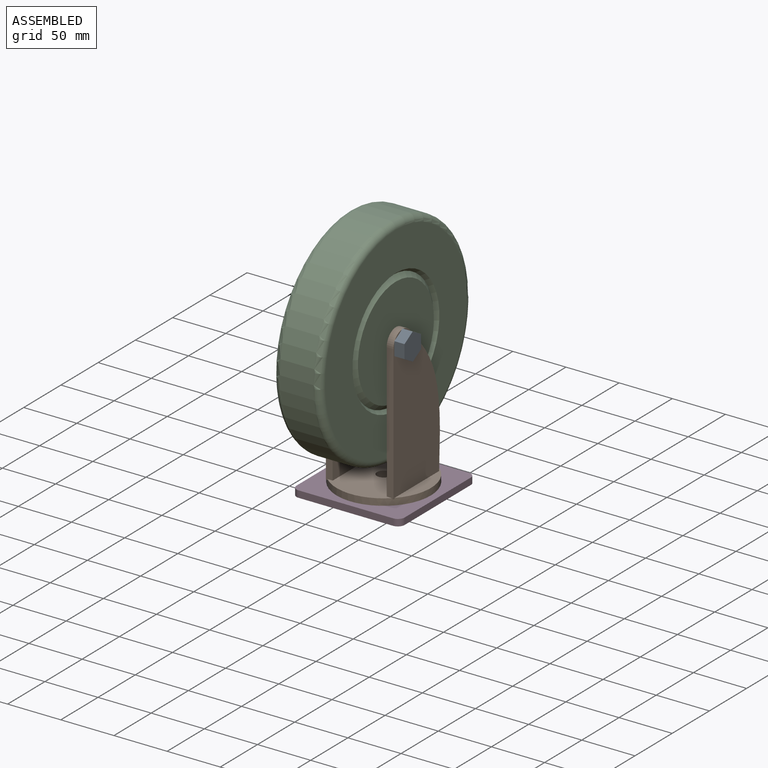
[diagram: assembled view]
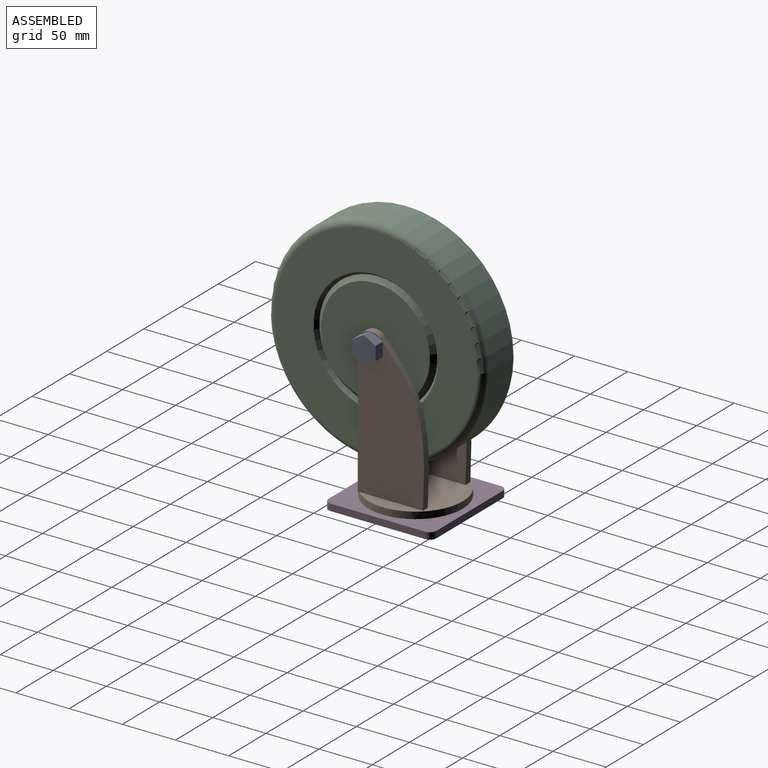
[diagram: assembled view, second angle]
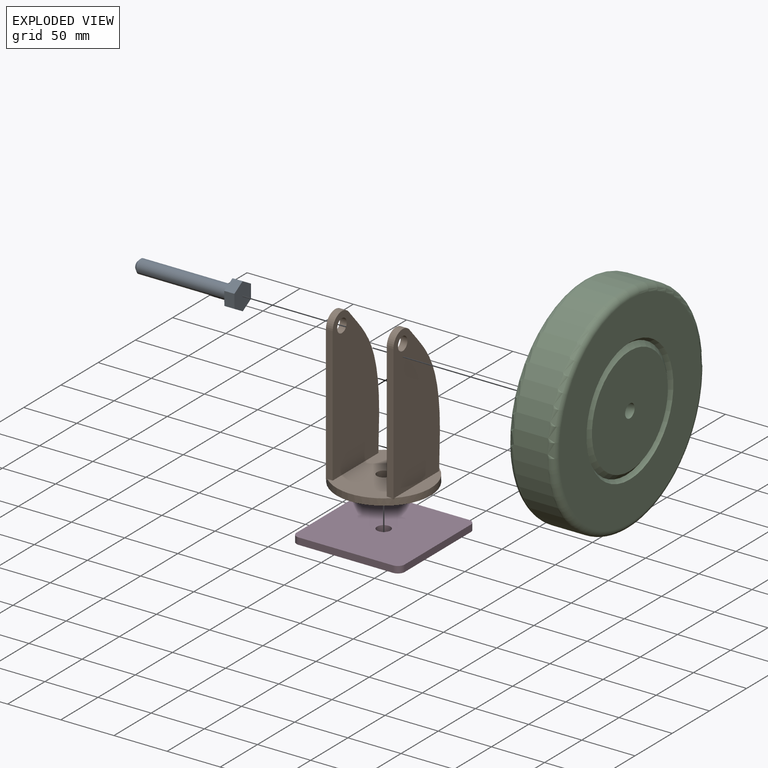
[diagram: exploded view]
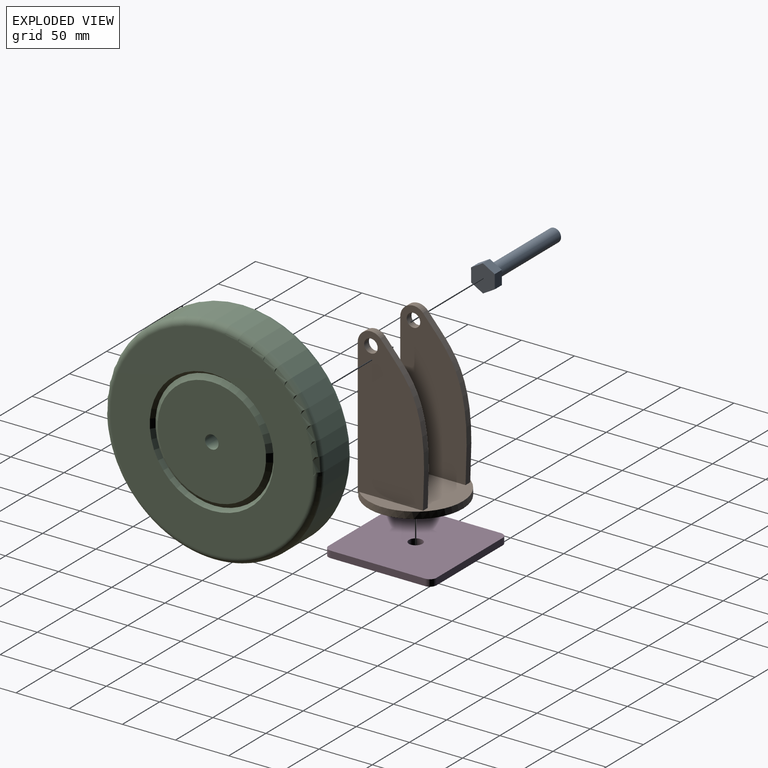
[diagram: exploded view, second angle]
ASSEMBLY  parts=4 mates=3
PART A: 11 faces, bbox 98.4x22.4x25.7 mm
  f0: cylinder r=6.35mm len=86.36mm, axis (-1,0,0), area 3445.6mm2, adj f9,f10
  f1: plane 7.62x7.62mm, normal (-1,0,0), area 45.6mm2, adj f10
  f2: plane 12.85x9.53mm, normal (0,1,0.01), area 122.4mm2, adj f3,f7,f8,f9
  f3: plane 11.19x9.53mm, normal (0,0.49,0.87), area 122.4mm2, adj f2,f4,f8,f9
  f4: plane 11.08x9.53mm, normal (0,-0.51,0.86), area 122.4mm2, adj f3,f5,f8,f9
  f5: plane 12.85x9.53mm, normal (0,-1,-0.01), area 122.4mm2, adj f4,f6,f8,f9
  f6: plane 11.19x9.53mm, normal (0,-0.49,-0.87), area 122.4mm2, adj f5,f7,f8,f9
  f7: plane 11.08x9.53mm, normal (0,0.51,-0.86), area 122.4mm2, adj f2,f6,f8,f9
  f8: plane 25.71x22.38mm, normal (1,0,0), area 429.3mm2, adj f2,f3,f4,f5,f6,f7
  f9: plane 25.71x22.38mm, normal (-1,0,0), area 302.6mm2, adj f0,f2,f3,f4,f5,f6,f7
  f10: cone r=6.35mm half-angle=45deg, axis (1,0,0), area 114.7mm2, adj f0,f1
PART B: 18 faces, bbox 88.7x88.7x145.8 mm
  f0: cylinder r=44.34mm len=88.68mm, axis (0,0,-1), area 1765.9mm2, adj f1,f3,f4,f5,f6,f11,f12,f16
  f1: plane 88.68x88.68mm, normal (0,0,1), area 5271.6mm2, adj f0,f2,f4,f5,f7,f10,f11,f12
  f2: cylinder r=6.35mm len=12.7mm, axis (0,0,-1), area 253.4mm2, adj f1,f3
  f3: plane 88.68x88.68mm, normal (0,0,-1), area 6049.5mm2, adj f0,f2
  f4: plane 127.85x6.35mm, normal (0,-1,0), area 807.6mm2, adj f0,f1,f5,f6,f9,f10
  f5: plane 140.26x62.94mm, normal (1,0,0), area 7186.4mm2, adj f0,f1,f4,f6,f7,f8,f9
  f6: plane 1.33x1.31mm, normal (0,0,-1), area 0.9mm2, adj f0,f4,f5
  f7: extruded ~134.36x39.99mm, area 925.5mm2, adj f1,f5,f9,f10
  f8: cylinder r=6.35mm len=12.7mm, axis (1,0,0), area 253.4mm2, adj f5,f10
  f9: cylinder r=12.41mm len=22.4mm, axis (1,0,0), area 197.5mm2, adj f4,f5,f7,f10
  f10: plane 139.95x62.94mm, normal (-1,0,0), area 7185.3mm2, adj f1,f4,f7,f8,f9
  f11: plane 127.85x6.35mm, normal (0,-1,0), area 807.6mm2, adj f0,f1,f12,f13,f16,f17
  f12: plane 140.26x62.94mm, normal (-1,0,0), area 7186.4mm2, adj f0,f1,f11,f13,f14,f15,f16
  f13: cylinder r=12.41mm len=22.4mm, axis (-1,0,0), area 197.5mm2, adj f11,f12,f14,f17
  f14: extruded ~134.36x39.99mm, area 925.5mm2, adj f1,f12,f13,f17
  f15: cylinder r=6.35mm len=12.7mm, axis (-1,0,0), area 253.4mm2, adj f12,f17
  f16: plane 1.33x1.31mm, normal (0,0,-1), area 0.9mm2, adj f0,f11,f12
  f17: plane 139.95x62.94mm, normal (1,0,0), area 7185.3mm2, adj f1,f11,f13,f14,f15
PART C: 12 faces, bbox 44.5x219.9x219.9 mm
  f0: cylinder r=101.6mm len=203.2mm, axis (-1,0,0), area 20268.3mm2, adj f1,f10
  f1: torus R=95.25mm, axis (-1,0,0), area 6222.9mm2, adj f0,f2
  f2: plane 190.5x190.5mm, normal (1,0,0), area 17805.4mm2, adj f1,f3
  f3: cone r=58.35mm half-angle=38.9deg, axis (1,0,0), area 1634.3mm2, adj f2,f4
  f4: cone r=55.48mm half-angle=51.1deg, axis (-1,0,0), area 1898.5mm2, adj f3,f5
  f5: plane 102.14x102.14mm, normal (1,0,0), area 8066.6mm2, adj f4,f11
  f6: plane 101.6x101.6mm, normal (-1,0,0), area 7980.6mm2, adj f7,f11
  f7: cone r=50.8mm half-angle=52deg, axis (1,0,0), area 1986mm2, adj f6,f8
  f8: cone r=55.48mm half-angle=38deg, axis (-1,0,0), area 1664.2mm2, adj f7,f9
  f9: plane 190.5x190.5mm, normal (-1,0,0), area 17805.4mm2, adj f8,f10
  f10: torus R=95.25mm, axis (-1,0,0), area 6222.9mm2, adj f0,f9
  f11: cylinder r=6.35mm len=44.45mm, axis (1,0,0), area 1773.5mm2, adj f5,f6
PART D: 11 faces, bbox 101.6x101.6x6.4 mm
  f0: plane 88.9x6.35mm, normal (0,1,0), area 564.5mm2, adj f1,f8,f9,f10
  f1: cylinder r=6.35mm len=6.35mm, axis (0,0,-1), area 63.3mm2, adj f0,f2,f9,f10
  f2: plane 88.9x6.35mm, normal (-1,0,0), area 564.5mm2, adj f1,f3,f9,f10
  f3: cylinder r=6.35mm len=6.35mm, axis (0,0,-1), area 63.3mm2, adj f2,f4,f9,f10
  f4: plane 88.9x6.35mm, normal (0,-1,0), area 564.5mm2, adj f3,f5,f9,f10
  f5: cylinder r=6.35mm len=6.35mm, axis (0,0,-1), area 63.3mm2, adj f4,f6,f9,f10
  f6: plane 88.9x6.35mm, normal (1,0,0), area 564.5mm2, adj f5,f8,f9,f10
  f7: cylinder r=6.35mm len=12.7mm, axis (0,0,-1), area 253.4mm2, adj f9,f10
  f8: cylinder r=6.35mm len=6.35mm, axis (0,0,-1), area 63.3mm2, adj f0,f6,f9,f10
  f9: plane 101.6x101.6mm, normal (0,0,1), area 10161.3mm2, adj f0,f1,f2,f3,f4,f5,f6,f7
  f10: plane 101.6x101.6mm, normal (0,0,-1), area 10161.3mm2, adj f0,f1,f2,f3,f4,f5,f6,f7
PLACE A t=(-339.3,-43.28,67)mm
PLACE B t=(11.08,211.49,-205.79)mm
PLACE C t=(-573.91,12.44,-66.09)mm
PLACE D t=(11.08,211.49,-205.79)mm
MATE revolute D.f7 <-> B.f0  axis (0,0,1) through (-282.15,-191.7,-199.44)mm
MATE revolute C.f0 <-> B.f8  axis (1,0,0) through (-256.75,-211.55,-66.09)mm
MATE revolute B.f8 <-> A.f0  axis (1,0,0) through (-250.4,-211.55,-66.09)mm
